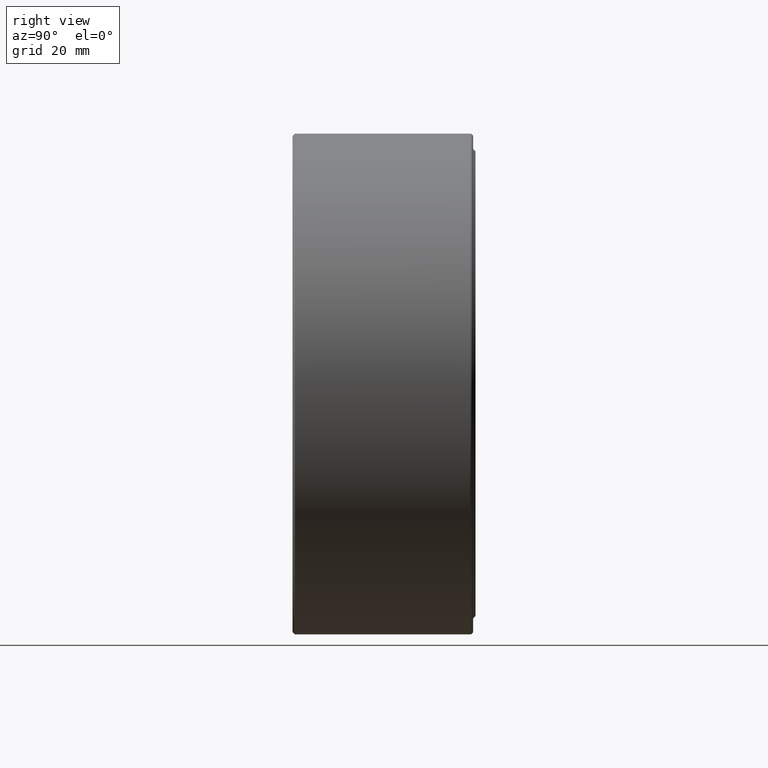
[diagram: clean part render]
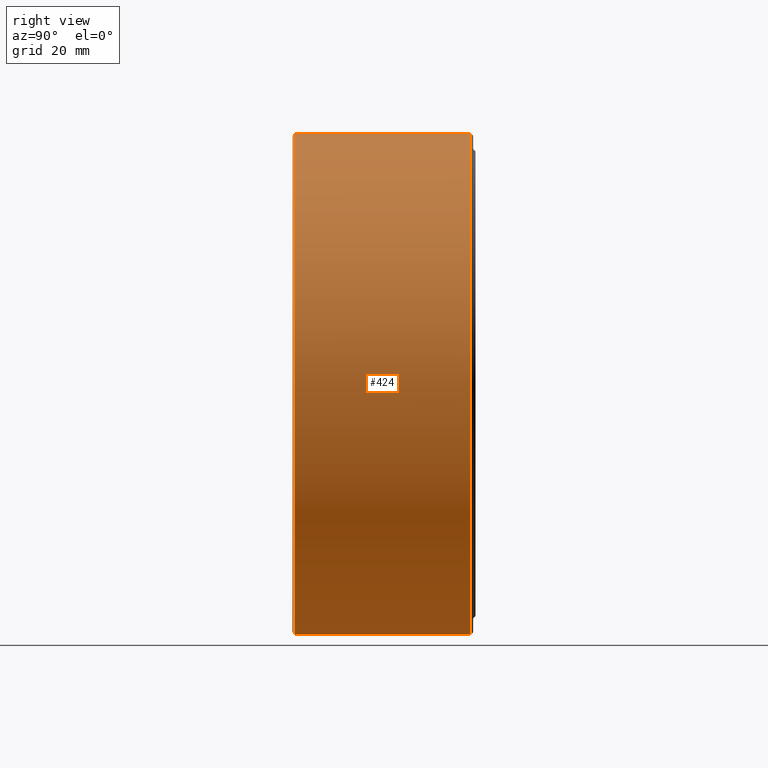
[diagram: same view with one face highlighted and labeled with its STEP entity id]
A machine part, right view. The second image highlights one B-rep face of the part: STEP entity #424.
In plain terms, the highlighted cylindrical surface (bore or boss wall) has radius 41.275 mm, axis along (-0, 1, -0).
Its self-contained STEP definition (entity closure, byte-faithful):
#6 = VERTEX_POINT ( 'NONE', #419 ) ;
#27 = ORIENTED_EDGE ( 'NONE', *, *, #88, .F. ) ;
#34 = EDGE_LOOP ( 'NONE', ( #27 ) ) ;
#66 = CARTESIAN_POINT ( 'NONE',  ( 0.0000000000000000000, 0.0000000000000000000, 0.0000000000000000000 ) ) ;
#77 = EDGE_LOOP ( 'NONE', ( #577 ) ) ;
#88 = EDGE_CURVE ( 'NONE', #6, #6, #141, .T. ) ;
#112 = DIRECTION ( 'NONE',  ( -0.0000000000000000000, 1.000000000000000000, -0.0000000000000000000 ) ) ;
#113 = AXIS2_PLACEMENT_3D ( 'NONE', #66, #432, #523 ) ;
#114 = VERTEX_POINT ( 'NONE', #404 ) ;
#133 = FACE_OUTER_BOUND ( 'NONE', #77, .T. ) ;
#141 = CIRCLE ( 'NONE', #181, 1.625000000000000000 ) ;
#159 = DIRECTION ( 'NONE',  ( 0.0000000000000000000, 0.0000000000000000000, 1.000000000000000000 ) ) ;
#181 = AXIS2_PLACEMENT_3D ( 'NONE', #477, #112, #159 ) ;
#269 = CIRCLE ( 'NONE', #356, 1.624999999999999800 ) ;
#356 = AXIS2_PLACEMENT_3D ( 'NONE', #518, #375, #507 ) ;
#366 = FACE_OUTER_BOUND ( 'NONE', #34, .T. ) ;
#375 = DIRECTION ( 'NONE',  ( -0.0000000000000000000, 1.000000000000000000, -0.0000000000000000000 ) ) ;
#377 = EDGE_CURVE ( 'NONE', #114, #114, #269, .T. ) ;
#404 = CARTESIAN_POINT ( 'NONE',  ( 0.0000000000000000000, 0.01499999999999997700, 1.624999999999999800 ) ) ;
#419 = CARTESIAN_POINT ( 'NONE',  ( 0.0000000000000000000, 1.152499999999999900, 1.625000000000000000 ) ) ;
#424 = ADVANCED_FACE ( 'NONE', ( #366, #133 ), #591, .T. ) ;
#432 = DIRECTION ( 'NONE',  ( -0.0000000000000000000, 1.000000000000000000, -0.0000000000000000000 ) ) ;
#477 = CARTESIAN_POINT ( 'NONE',  ( 0.0000000000000000000, 1.152499999999999900, 0.0000000000000000000 ) ) ;
#507 = DIRECTION ( 'NONE',  ( 0.0000000000000000000, 0.0000000000000000000, 1.000000000000000000 ) ) ;
#518 = CARTESIAN_POINT ( 'NONE',  ( 0.0000000000000000000, 0.01499999999999997700, 0.0000000000000000000 ) ) ;
#523 = DIRECTION ( 'NONE',  ( 0.0000000000000000000, 0.0000000000000000000, 1.000000000000000000 ) ) ;
#577 = ORIENTED_EDGE ( 'NONE', *, *, #377, .T. ) ;
#591 = CYLINDRICAL_SURFACE ( 'NONE', #113, 1.624999999999999800 ) ;